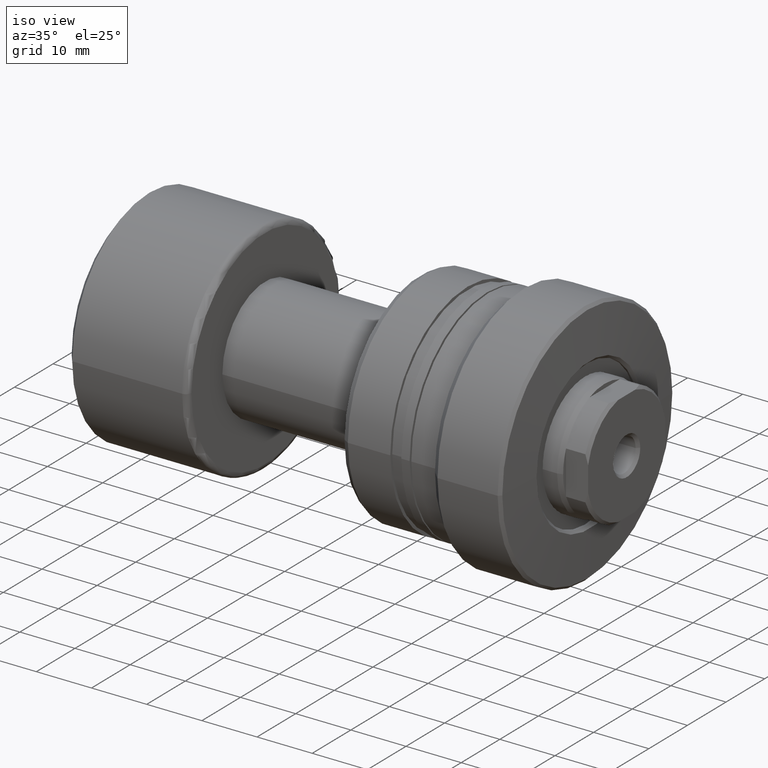
[diagram: clean part render]
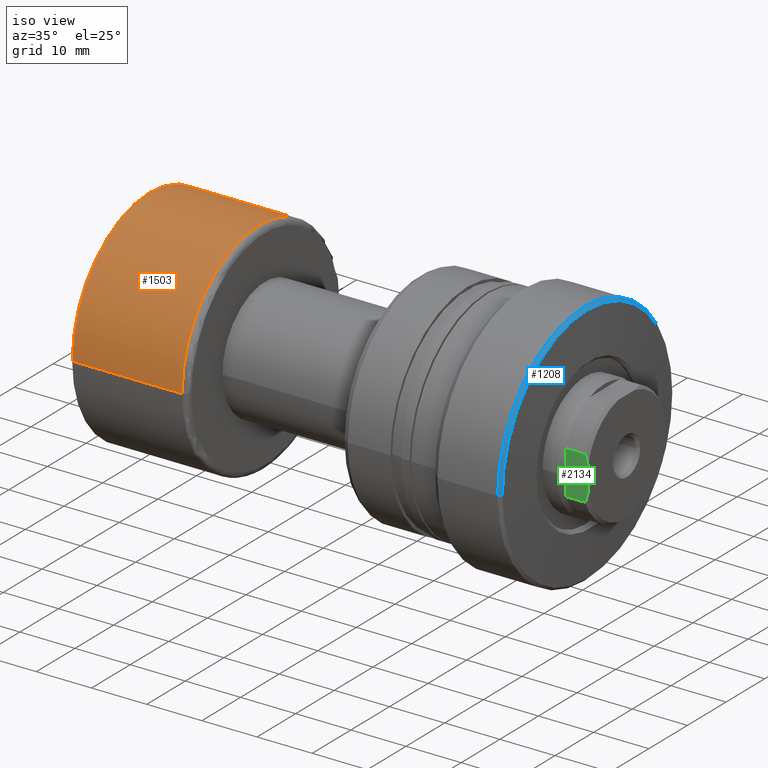
[diagram: same view with three faces highlighted in distinct colors, each labeled with its STEP entity id]
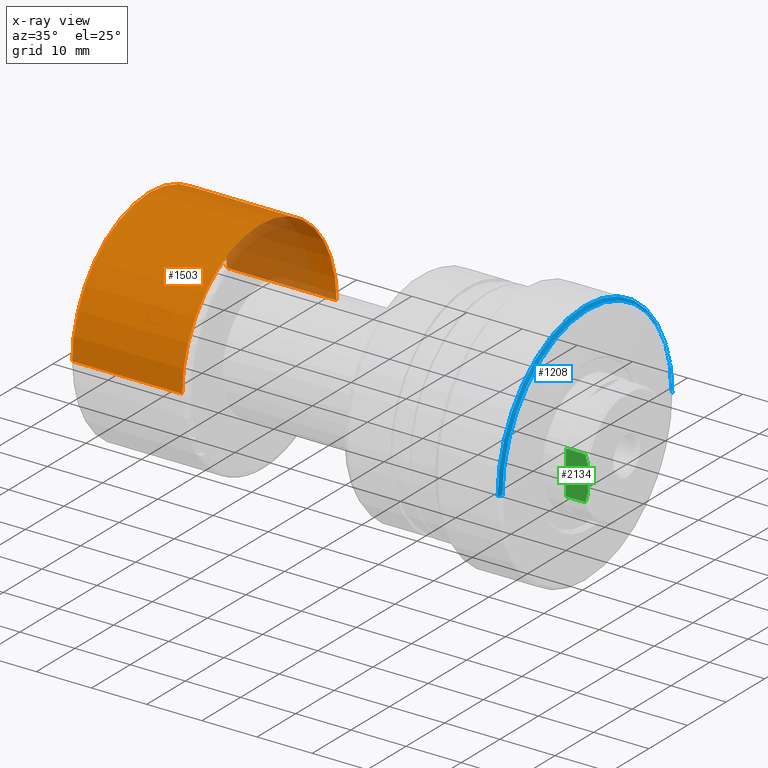
[diagram: x-ray of the same camera — body ghosted, the three highlighted faces saturated]
A machine part, iso view with three faces highlighted in distinct colors.
The next image is the same camera in x-ray (body ghosted, the three faces saturated) — at least one of them is partly hidden behind the body in this view.
Their STEP definitions:

[orange] entity #1503 — the highlighted cylindrical surface (partial cylindrical patch) has radius 20 mm, axis along (-1, -0, -0).
#148 = CARTESIAN_POINT ( 'NONE',  ( 21.40000000000000213, -20.00000000000000000, 0.000000000000000000 ) ) ;
#260 = DIRECTION ( 'NONE',  ( 1.084202172485504434E-17, -1.000000000000000000, 0.000000000000000000 ) ) ;
#270 = DIRECTION ( 'NONE',  ( -1.000000000000000000, -1.069542322069065801E-17, -0.000000000000000000 ) ) ;
#297 = CYLINDRICAL_SURFACE ( 'NONE', #1654, 20.00000000000000000 ) ;
#330 = VECTOR ( 'NONE', #2183, 1000.000000000000000 ) ;
#339 = VERTEX_POINT ( 'NONE', #148 ) ;
#442 = FACE_OUTER_BOUND ( 'NONE', #834, .T. ) ;
#480 = CARTESIAN_POINT ( 'NONE',  ( 21.40000000000000213, 2.288820569227801297E-16, 0.000000000000000000 ) ) ;
#505 = CARTESIAN_POINT ( 'NONE',  ( 1.500000000000002442, 20.00000000000000000, 0.000000000000000000 ) ) ;
#515 = VERTEX_POINT ( 'NONE', #2032 ) ;
#549 = CARTESIAN_POINT ( 'NONE',  ( 1.500000000000002887, -20.00000000000000000, 2.449293598294706513E-15 ) ) ;
#584 = EDGE_CURVE ( 'NONE', #339, #928, #2135, .T. ) ;
#827 = DIRECTION ( 'NONE',  ( 1.069542322069065955E-17, -1.000000000000000000, 0.000000000000000000 ) ) ;
#834 = EDGE_LOOP ( 'NONE', ( #1814, #1969, #1539, #1183 ) ) ;
#855 = AXIS2_PLACEMENT_3D ( 'NONE', #480, #1205, #1242 ) ;
#901 = CIRCLE ( 'NONE', #855, 20.00000000000000000 ) ;
#928 = VERTEX_POINT ( 'NONE', #549 ) ;
#935 = VECTOR ( 'NONE', #1747, 1000.000000000000000 ) ;
#1012 = CARTESIAN_POINT ( 'NONE',  ( 2.139084644138131786E-16, -20.00000000000000000, 0.000000000000000000 ) ) ;
#1045 = CARTESIAN_POINT ( 'NONE',  ( 0.000000000000000000, 0.000000000000000000, 0.000000000000000000 ) ) ;
#1183 = ORIENTED_EDGE ( 'NONE', *, *, #584, .F. ) ;
#1205 = DIRECTION ( 'NONE',  ( -1.000000000000000000, -1.069542322069065801E-17, -0.000000000000000000 ) ) ;
#1222 = CARTESIAN_POINT ( 'NONE',  ( 1.500000000000002442, 1.604313483103601552E-17, 0.000000000000000000 ) ) ;
#1242 = DIRECTION ( 'NONE',  ( 0.000000000000000000, -1.000000000000000000, 0.000000000000000000 ) ) ;
#1286 = EDGE_CURVE ( 'NONE', #928, #1876, #1378, .T. ) ;
#1378 = CIRCLE ( 'NONE', #2356, 20.00000000000000000 ) ;
#1480 = LINE ( 'NONE', #1626, #330 ) ;
#1503 = ADVANCED_FACE ( 'NONE', ( #442 ), #297, .T. ) ;
#1531 = EDGE_CURVE ( 'NONE', #339, #515, #901, .T. ) ;
#1539 = ORIENTED_EDGE ( 'NONE', *, *, #1286, .F. ) ;
#1618 = DIRECTION ( 'NONE',  ( -1.000000000000000000, -1.069542322069065801E-17, -0.000000000000000000 ) ) ;
#1626 = CARTESIAN_POINT ( 'NONE',  ( -2.139084644138131786E-16, 20.00000000000000000, 2.449293598294706513E-15 ) ) ;
#1654 = AXIS2_PLACEMENT_3D ( 'NONE', #1045, #270, #827 ) ;
#1747 = DIRECTION ( 'NONE',  ( -1.000000000000000000, -1.069542322069065801E-17, -0.000000000000000000 ) ) ;
#1814 = ORIENTED_EDGE ( 'NONE', *, *, #1531, .T. ) ;
#1876 = VERTEX_POINT ( 'NONE', #505 ) ;
#1969 = ORIENTED_EDGE ( 'NONE', *, *, #2229, .T. ) ;
#2032 = CARTESIAN_POINT ( 'NONE',  ( 21.40000000000000213, 20.00000000000000000, 2.449293598294706513E-15 ) ) ;
#2135 = LINE ( 'NONE', #1012, #935 ) ;
#2183 = DIRECTION ( 'NONE',  ( -1.000000000000000000, -1.069542322069065801E-17, -0.000000000000000000 ) ) ;
#2229 = EDGE_CURVE ( 'NONE', #515, #1876, #1480, .T. ) ;
#2356 = AXIS2_PLACEMENT_3D ( 'NONE', #1222, #1618, #260 ) ;

[blue] entity #1208 — the highlighted conical surface has half-angle 45 deg.
#15 = VECTOR ( 'NONE', #2399, 1000.000000000000000 ) ;
#24 = CARTESIAN_POINT ( 'NONE',  ( -1.600000000000695755, -22.49999999999999645, 2.755455298081553850E-15 ) ) ;
#46 = DIRECTION ( 'NONE',  ( -3.035766082959400977E-15, 1.000000000000000000, 0.000000000000000000 ) ) ;
#59 = CARTESIAN_POINT ( 'NONE',  ( -1.600000000000695755, -22.50000000000000000, 0.000000000000000000 ) ) ;
#203 = ORIENTED_EDGE ( 'NONE', *, *, #1031, .F. ) ;
#320 = LINE ( 'NONE', #1649, #15 ) ;
#403 = CARTESIAN_POINT ( 'NONE',  ( -1.100000000000665556, -21.99999999999997158, 0.000000000000000000 ) ) ;
#455 = ORIENTED_EDGE ( 'NONE', *, *, #2370, .T. ) ;
#482 = DIRECTION ( 'NONE',  ( 3.035766082959400977E-15, -1.000000000000000000, 0.000000000000000000 ) ) ;
#614 = EDGE_CURVE ( 'NONE', #1083, #1770, #992, .T. ) ;
#641 = CARTESIAN_POINT ( 'NONE',  ( -1.100000000000799227, 22.00000000000015277, 2.724839128102870063E-15 ) ) ;
#692 = AXIS2_PLACEMENT_3D ( 'NONE', #1888, #2251, #1284 ) ;
#857 = VERTEX_POINT ( 'NONE', #641 ) ;
#989 = CARTESIAN_POINT ( 'NONE',  ( -1.600000000000763922, 8.717557383052277888E-14, 0.000000000000000000 ) ) ;
#992 = LINE ( 'NONE', #59, #1490 ) ;
#1014 = CIRCLE ( 'NONE', #692, 22.00000000000006040 ) ;
#1031 = EDGE_CURVE ( 'NONE', #857, #1083, #1014, .T. ) ;
#1083 = VERTEX_POINT ( 'NONE', #403 ) ;
#1186 = FACE_OUTER_BOUND ( 'NONE', #1464, .T. ) ;
#1197 = EDGE_CURVE ( 'NONE', #2334, #1770, #1883, .T. ) ;
#1208 = ADVANCED_FACE ( 'NONE', ( #1186 ), #2314, .T. ) ;
#1262 = CARTESIAN_POINT ( 'NONE',  ( -1.600000000000832312, 22.50000000000017408, 0.000000000000000000 ) ) ;
#1284 = DIRECTION ( 'NONE',  ( -3.035766082959404132E-15, 1.000000000000000000, 0.000000000000000000 ) ) ;
#1353 = DIRECTION ( 'NONE',  ( -0.7071067811865502373, -0.7071067811865447972, 0.000000000000000000 ) ) ;
#1464 = EDGE_LOOP ( 'NONE', ( #203, #455, #1511, #1516 ) ) ;
#1490 = VECTOR ( 'NONE', #1353, 1000.000000000000000 ) ;
#1511 = ORIENTED_EDGE ( 'NONE', *, *, #1197, .T. ) ;
#1516 = ORIENTED_EDGE ( 'NONE', *, *, #614, .F. ) ;
#1649 = CARTESIAN_POINT ( 'NONE',  ( -1.600000000000832312, 22.50000000000017408, 2.755455298081555033E-15 ) ) ;
#1738 = DIRECTION ( 'NONE',  ( 1.000000000000000000, 3.039592211588219332E-15, -0.000000000000000000 ) ) ;
#1770 = VERTEX_POINT ( 'NONE', #24 ) ;
#1804 = AXIS2_PLACEMENT_3D ( 'NONE', #1929, #2145, #482 ) ;
#1881 = AXIS2_PLACEMENT_3D ( 'NONE', #989, #1738, #46 ) ;
#1883 = CIRCLE ( 'NONE', #1881, 22.50000000000008527 ) ;
#1888 = CARTESIAN_POINT ( 'NONE',  ( -1.100000000000732392, 8.869536993631697946E-14, 0.000000000000000000 ) ) ;
#1929 = CARTESIAN_POINT ( 'NONE',  ( -1.600000000000763922, 8.717557383052277888E-14, 0.000000000000000000 ) ) ;
#2145 = DIRECTION ( 'NONE',  ( -1.000000000000000000, -3.039592211588219332E-15, 0.000000000000000000 ) ) ;
#2251 = DIRECTION ( 'NONE',  ( 1.000000000000000000, 3.039592211588219332E-15, -0.000000000000000000 ) ) ;
#2314 = CONICAL_SURFACE ( 'NONE', #1804, 22.50000000000008527, 0.7853981633974415066 ) ;
#2334 = VERTEX_POINT ( 'NONE', #1262 ) ;
#2370 = EDGE_CURVE ( 'NONE', #857, #2334, #320, .T. ) ;
#2399 = DIRECTION ( 'NONE',  ( -0.7071067811865544561, 0.7071067811865405783, 8.659560562354873694E-17 ) ) ;

[green] entity #2134 — the highlighted planar face has unit normal (0, 1, 0).
#28 = VECTOR ( 'NONE', #1065, 1000.000000000000000 ) ;
#40 = CARTESIAN_POINT ( 'NONE',  ( 87.99999999999982947, -10.00000000000145661, 2.249999999993488764 ) ) ;
#52 = B_SPLINE_CURVE_WITH_KNOTS ( 'NONE', 3,
 ( #40, #1946, #1019, #1768 ),
 .UNSPECIFIED., .F., .F.,
 ( 4, 4 ),
 ( 4.718958039861916012E-17, 0.001767144428793065731 ),
 .UNSPECIFIED. ) ;
#99 = ORIENTED_EDGE ( 'NONE', *, *, #1074, .T. ) ;
#120 = VERTEX_POINT ( 'NONE', #995 ) ;
#201 = CARTESIAN_POINT ( 'NONE',  ( 87.99999999999982947, -10.00000000000145661, 2.249999999993488764 ) ) ;
#236 = CARTESIAN_POINT ( 'NONE',  ( 87.70335817859951533, -10.00000000000019718, -3.390779519433945399 ) ) ;
#257 = CARTESIAN_POINT ( 'NONE',  ( 87.50000000000000000, -10.00000000000094857, 3.944933459517597996 ) ) ;
#329 = EDGE_CURVE ( 'NONE', #644, #2110, #1437, .T. ) ;
#397 = EDGE_CURVE ( 'NONE', #1053, #644, #1970, .T. ) ;
#417 = VECTOR ( 'NONE', #672, 1000.000000000000000 ) ;
#565 = ORIENTED_EDGE ( 'NONE', *, *, #329, .F. ) ;
#644 = VERTEX_POINT ( 'NONE', #789 ) ;
#672 = DIRECTION ( 'NONE',  ( 0.000000000000000000, -4.397345338720848734E-16, 1.000000000000000000 ) ) ;
#681 = DIRECTION ( 'NONE',  ( 0.000000000000000000, -4.397345338720848734E-16, 1.000000000000000000 ) ) ;
#685 = CARTESIAN_POINT ( 'NONE',  ( 83.99999999999982947, -10.00000000000089173, 3.944933459517597996 ) ) ;
#700 = LINE ( 'NONE', #1800, #1011 ) ;
#714 = CARTESIAN_POINT ( 'NONE',  ( 83.99999999999982947, -10.00000000000189004, -3.944933459515072016 ) ) ;
#749 = EDGE_CURVE ( 'NONE', #120, #1094, #700, .T. ) ;
#789 = CARTESIAN_POINT ( 'NONE',  ( 83.99999999999982947, -10.00000000000089173, 3.944933459517597996 ) ) ;
#950 = B_SPLINE_CURVE_WITH_KNOTS ( 'NONE', 3,
 ( #2302, #236, #998, #1350 ),
 .UNSPECIFIED., .F., .F.,
 ( 4, 4 ),
 ( 6.648003796898145729E-16, 0.001767144428789988115 ),
 .UNSPECIFIED. ) ;
#995 = CARTESIAN_POINT ( 'NONE',  ( 88.00000000000000000, -10.00000000000145306, -2.249999999993482991 ) ) ;
#998 = CARTESIAN_POINT ( 'NONE',  ( 87.87338680022158144, -10.00000000000145306, -2.826793465652351678 ) ) ;
#1011 = VECTOR ( 'NONE', #681, 1000.000000000000000 ) ;
#1019 = CARTESIAN_POINT ( 'NONE',  ( 87.70335817859806582, -10.00000000000145306, 3.390779519434932165 ) ) ;
#1053 = VERTEX_POINT ( 'NONE', #1700 ) ;
#1054 = CARTESIAN_POINT ( 'NONE',  ( 83.99999999999982947, -10.00000000000138733, -3.944933459514880614 ) ) ;
#1065 = DIRECTION ( 'NONE',  ( 1.000000000000000000, -1.657264799492230625E-14, -0.000000000000000000 ) ) ;
#1074 = EDGE_CURVE ( 'NONE', #2351, #120, #950, .T. ) ;
#1089 = ORIENTED_EDGE ( 'NONE', *, *, #397, .F. ) ;
#1094 = VERTEX_POINT ( 'NONE', #201 ) ;
#1169 = VECTOR ( 'NONE', #2402, 1000.000000000000000 ) ;
#1268 = DIRECTION ( 'NONE',  ( -1.000000000000000000, 1.657264799492230625E-14, 0.000000000000000000 ) ) ;
#1287 = LINE ( 'NONE', #714, #28 ) ;
#1310 = FACE_OUTER_BOUND ( 'NONE', #1935, .T. ) ;
#1350 = CARTESIAN_POINT ( 'NONE',  ( 88.00000000000000000, -10.00000000000145306, -2.249999999993482991 ) ) ;
#1366 = EDGE_CURVE ( 'NONE', #1053, #2351, #1287, .T. ) ;
#1394 = ORIENTED_EDGE ( 'NONE', *, *, #1656, .T. ) ;
#1437 = LINE ( 'NONE', #685, #1169 ) ;
#1627 = CARTESIAN_POINT ( 'NONE',  ( 83.99999999999982947, -10.00000000000138733, -3.944933459514880614 ) ) ;
#1656 = EDGE_CURVE ( 'NONE', #1094, #2110, #52, .T. ) ;
#1658 = DIRECTION ( 'NONE',  ( 1.657264799492230625E-14, 1.000000000000000000, 4.397345338720848734E-16 ) ) ;
#1675 = AXIS2_PLACEMENT_3D ( 'NONE', #1627, #1658, #1268 ) ;
#1700 = CARTESIAN_POINT ( 'NONE',  ( 83.99999999999982947, -10.00000000000189004, -3.944933459515072016 ) ) ;
#1768 = CARTESIAN_POINT ( 'NONE',  ( 87.50000000000000000, -10.00000000000094857, 3.944933459517597996 ) ) ;
#1800 = CARTESIAN_POINT ( 'NONE',  ( 87.99999999999982947, -10.00000000000145306, -3.944933459514880614 ) ) ;
#1867 = PLANE ( 'NONE',  #1675 ) ;
#1935 = EDGE_LOOP ( 'NONE', ( #2327, #99, #1944, #1394, #565, #1089 ) ) ;
#1944 = ORIENTED_EDGE ( 'NONE', *, *, #749, .T. ) ;
#1946 = CARTESIAN_POINT ( 'NONE',  ( 87.87338680022131143, -10.00000000000145484, 2.826793465653593351 ) ) ;
#1970 = LINE ( 'NONE', #1054, #417 ) ;
#2110 = VERTEX_POINT ( 'NONE', #257 ) ;
#2134 = ADVANCED_FACE ( 'NONE', ( #1310 ), #1867, .F. ) ;
#2302 = CARTESIAN_POINT ( 'NONE',  ( 87.49999999999998579, -10.00000000000194689, -3.944933459515072016 ) ) ;
#2327 = ORIENTED_EDGE ( 'NONE', *, *, #1366, .T. ) ;
#2351 = VERTEX_POINT ( 'NONE', #2358 ) ;
#2358 = CARTESIAN_POINT ( 'NONE',  ( 87.49999999999998579, -10.00000000000194689, -3.944933459515072016 ) ) ;
#2402 = DIRECTION ( 'NONE',  ( 1.000000000000000000, -1.657264799492230625E-14, -0.000000000000000000 ) ) ;